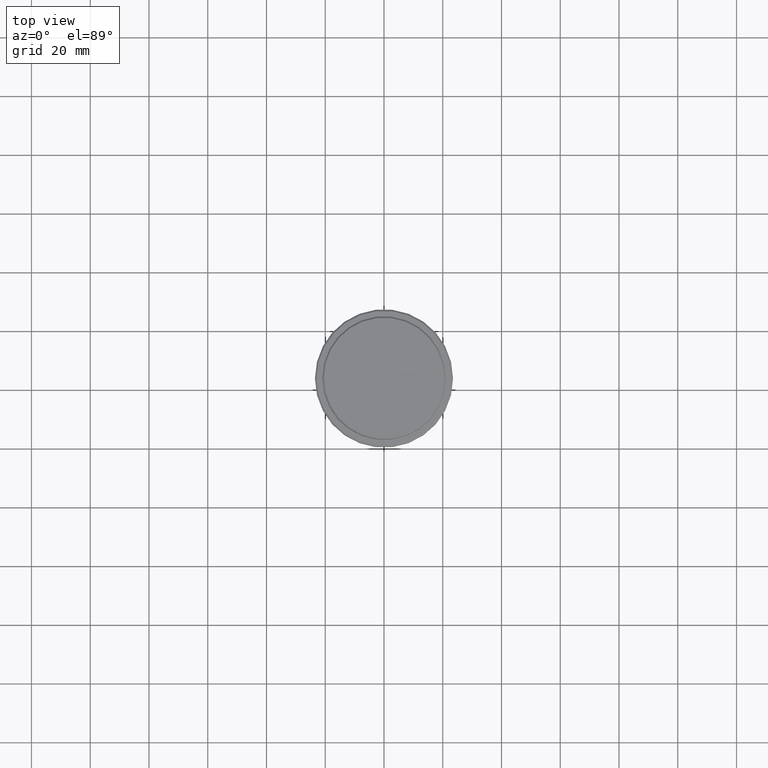
[diagram: clean part render]
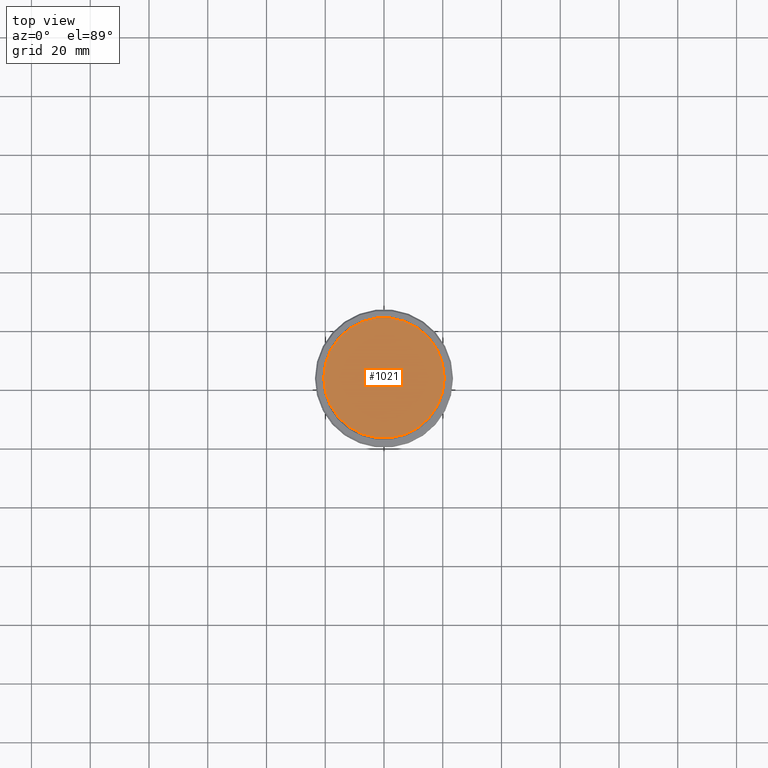
[diagram: same view with one face highlighted and labeled with its STEP entity id]
A machine part, top view. The second image highlights one B-rep face of the part: STEP entity #1021.
In plain terms, the highlighted planar face has unit normal (0, -0, 1).
Its self-contained STEP definition (entity closure, byte-faithful):
#30 = DIRECTION ( 'NONE',  ( 1.000000000000000000, 0.000000000000000000, 0.000000000000000000 ) ) ;
#143 = CARTESIAN_POINT ( 'NONE',  ( 0.000000000000000000, 0.000000000000000000, 0.000000000000000000 ) ) ;
#241 = FACE_OUTER_BOUND ( 'NONE', #1369, .T. ) ;
#303 = DIRECTION ( 'NONE',  ( 1.000000000000000000, 0.000000000000000000, 0.000000000000000000 ) ) ;
#357 = DIRECTION ( 'NONE',  ( 0.000000000000000000, -0.000000000000000000, 1.000000000000000000 ) ) ;
#460 = AXIS2_PLACEMENT_3D ( 'NONE', #593, #712, #303 ) ;
#508 = AXIS2_PLACEMENT_3D ( 'NONE', #143, #574, #1416 ) ;
#574 = DIRECTION ( 'NONE',  ( -0.000000000000000000, -0.000000000000000000, 1.000000000000000000 ) ) ;
#593 = CARTESIAN_POINT ( 'NONE',  ( 0.000000000000000000, 0.000000000000000000, 0.000000000000000000 ) ) ;
#622 = ORIENTED_EDGE ( 'NONE', *, *, #739, .T. ) ;
#665 = AXIS2_PLACEMENT_3D ( 'NONE', #1006, #357, #30 ) ;
#712 = DIRECTION ( 'NONE',  ( -0.000000000000000000, -0.000000000000000000, 1.000000000000000000 ) ) ;
#739 = EDGE_CURVE ( 'NONE', #1249, #1230, #1378, .T. ) ;
#860 = CARTESIAN_POINT ( 'NONE',  ( 20.50000000000001776, 2.541142108230758663E-15, 0.000000000000000000 ) ) ;
#1006 = CARTESIAN_POINT ( 'NONE',  ( 0.000000000000000000, 0.000000000000000000, 0.000000000000000000 ) ) ;
#1021 = ADVANCED_FACE ( 'NONE', ( #241 ), #1225, .T. ) ;
#1097 = CARTESIAN_POINT ( 'NONE',  ( -20.50000000000001776, 0.000000000000000000, 0.000000000000000000 ) ) ;
#1128 = EDGE_CURVE ( 'NONE', #1230, #1249, #1336, .T. ) ;
#1208 = ORIENTED_EDGE ( 'NONE', *, *, #1128, .T. ) ;
#1225 = PLANE ( 'NONE',  #665 ) ;
#1230 = VERTEX_POINT ( 'NONE', #1097 ) ;
#1249 = VERTEX_POINT ( 'NONE', #860 ) ;
#1336 = CIRCLE ( 'NONE', #508, 20.50000000000001776 ) ;
#1369 = EDGE_LOOP ( 'NONE', ( #1208, #622 ) ) ;
#1378 = CIRCLE ( 'NONE', #460, 20.50000000000001776 ) ;
#1416 = DIRECTION ( 'NONE',  ( 1.000000000000000000, 0.000000000000000000, 0.000000000000000000 ) ) ;